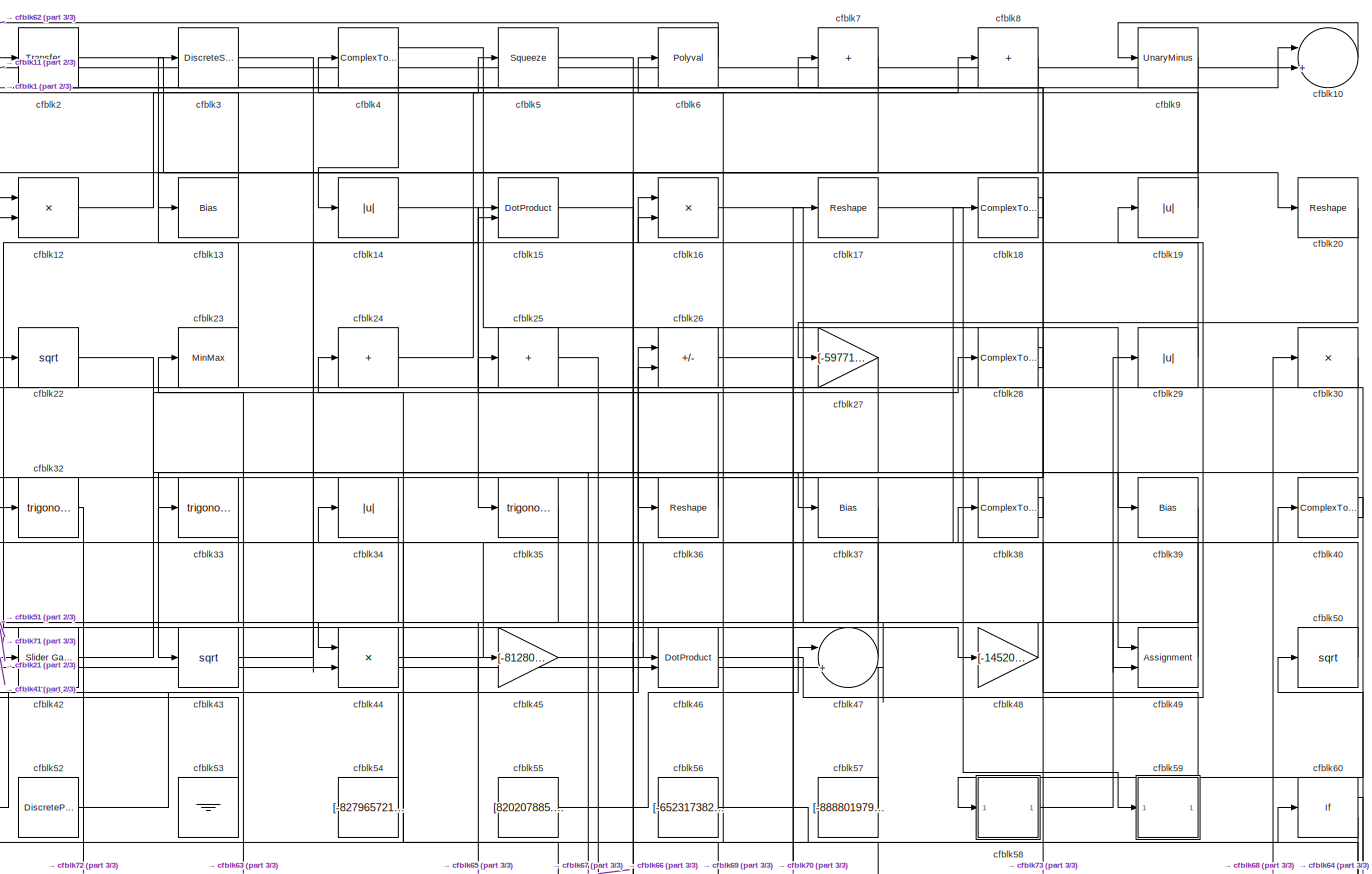
[diagram: root canvas - part 1/3, most of the canvas]
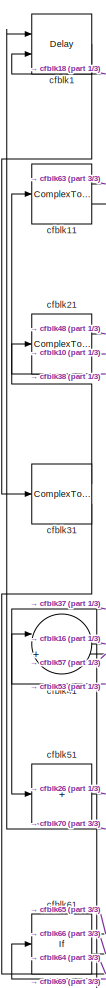
[diagram: root canvas - part 2/3, left side, full height]
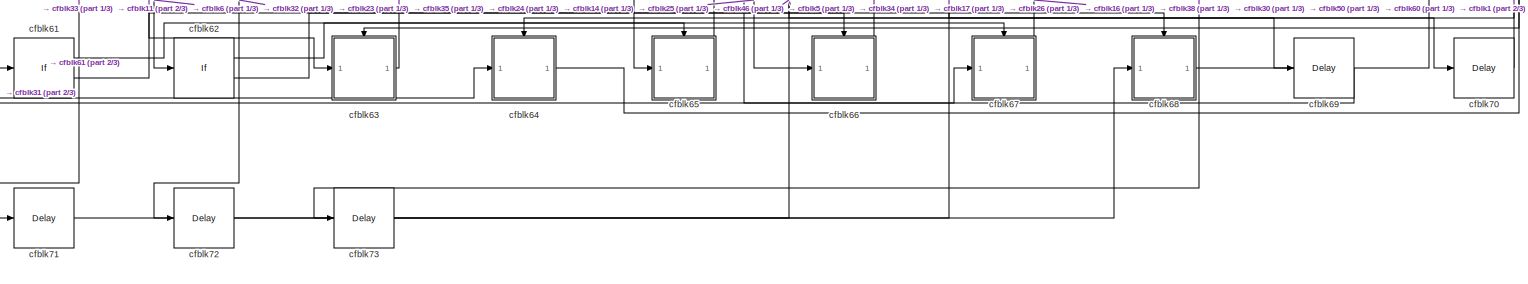
[diagram: root canvas - part 3/3, full width, bottom band]
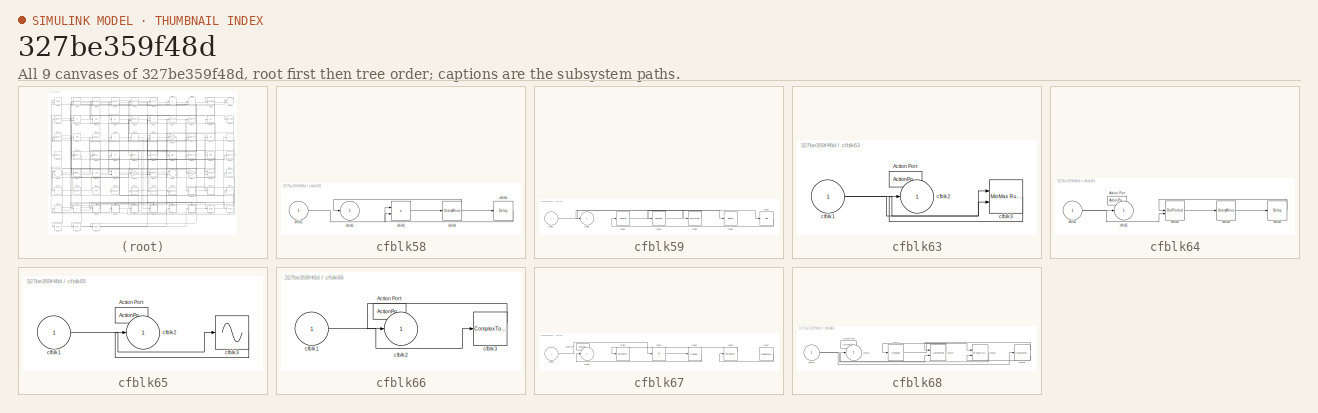
[diagram: thumbnail index - all 9 canvases of the model, root first then tree order]
MODEL slx_327be359f48d
KIND model
CONFIG AbsTol = auto
CONFIG EnableMultiTasking = off
CONFIG FixedStep = auto
CONFIG MaxStep = auto
CONFIG MinStep = auto
CONFIG RelTol = 1e-3
CONFIG SampleTimeConstraint = Unconstrained
CONFIG SolverName = VariableStepAuto
CONFIG StartTime = 0.0
CONFIG StopTime = 10.0
BLOCK [Delay] cfblk1
  DelayLengthSource = Input port
  InputPortMap = u0,p1
  Ports = [2, 1]
  SampleTime = 1
BLOCK [Sum] cfblk10
  Inputs = |++
  Ports = [2, 1]
BLOCK [ComplexToMagnitudeAngle] cfblk11
  Ports = [1, 2]
BLOCK [Product] cfblk12
  Inputs = **
  Ports = [2, 1]
BLOCK [Bias] cfblk13
  Bias = [-923462066.419543]
  SaturateOnIntegerOverflow = off
BLOCK [Abs] cfblk14
  SaturateOnIntegerOverflow = off
BLOCK [DotProduct] cfblk15
  OutDataTypeStr = Inherit: Inherit via internal rule
BLOCK [Product] cfblk16
  Inputs = **
  Ports = [2, 1]
BLOCK [Reshape] cfblk17
  Ports = [1, 1]
BLOCK [ComplexToMagnitudeAngle] cfblk18
  Ports = [1, 2]
BLOCK [Abs] cfblk19
  SaturateOnIntegerOverflow = off
BLOCK [Reference] cfblk2  REF=simulink/Discrete/Transfer Fcn
First Order
  Ports = [1, 1]
  SourceBlock = simulink/Discrete/Transfer Fcn\nFirst Order
  SourceProductBaseCode = SL
  SourceType = First Order Transfer Fcn
BLOCK [Reshape] cfblk20
  Ports = [1, 1]
BLOCK [ComplexToRealImag] cfblk21
  Ports = [1, 2]
BLOCK [Sqrt] cfblk22
BLOCK [MinMax] cfblk23
  Function = max
  Ports = [1, 1]
BLOCK [Sum] cfblk24
  IconShape = rectangular
  Inputs = +
  Ports = [1, 1]
BLOCK [Sum] cfblk25
  IconShape = rectangular
  Inputs = +
  Ports = [1, 1]
BLOCK [Sum] cfblk26
  IconShape = rectangular
  Inputs = +-
  Ports = [2, 1]
BLOCK [Gain] cfblk27
  Gain = [-597713606.381250]
BLOCK [ComplexToRealImag] cfblk28
  Ports = [1, 2]
BLOCK [Abs] cfblk29
  SaturateOnIntegerOverflow = off
BLOCK [DiscreteStateSpace] cfblk3
BLOCK [Product] cfblk30
  Inputs = *
  Ports = [1, 1]
BLOCK [ComplexToMagnitudeAngle] cfblk31
  Ports = [1, 2]
BLOCK [Trigonometry] cfblk32
  Ports = [1, 1]
BLOCK [Trigonometry] cfblk33
  Ports = [1, 1]
BLOCK [Abs] cfblk34
  SaturateOnIntegerOverflow = off
BLOCK [Trigonometry] cfblk35
  Ports = [1, 1]
BLOCK [Reshape] cfblk36
  Ports = [1, 1]
BLOCK [Bias] cfblk37
  Bias = [-637066120.639768]
  SaturateOnIntegerOverflow = off
BLOCK [ComplexToMagnitudeAngle] cfblk38
  Ports = [1, 2]
BLOCK [Bias] cfblk39
  Bias = [895369597.975036]
  SaturateOnIntegerOverflow = off
BLOCK [ComplexToMagnitudeAngle] cfblk4
  Ports = [1, 2]
BLOCK [ComplexToRealImag] cfblk40
  Ports = [1, 2]
BLOCK [Sum] cfblk41
  Inputs = |++
  Ports = [2, 1]
BLOCK [Reference] cfblk42  REF=simulink/Math
Operations/Slider
Gain
  Ports = [1, 1]
  SourceBlock = simulink/Math\nOperations/Slider\nGain
  SourceProductBaseCode = SL
  SourceType = Slider Gain
BLOCK [Sqrt] cfblk43
BLOCK [Product] cfblk44
  Inputs = **
  Ports = [2, 1]
BLOCK [Gain] cfblk45
  Gain = [-812802874.946073]
BLOCK [DotProduct] cfblk46
  OutDataTypeStr = Inherit: Inherit via internal rule
BLOCK [Sum] cfblk47
  Inputs = |++
  Ports = [2, 1]
BLOCK [Gain] cfblk48
  Gain = [-145205188.622426]
BLOCK [Assignment] cfblk49
  DiagnosticForDimensions = Warning
  IndexOptions = Index vector (dialog)
  Indices = 1
  OutputSizes = 1
  Ports = [2, 1]
BLOCK [Squeeze] cfblk5
BLOCK [Sqrt] cfblk50
BLOCK [Sum] cfblk51
  IconShape = rectangular
  Inputs = +
  Ports = [1, 1]
BLOCK [DiscretePulseGenerator] cfblk52
  Amplitude = [-578887056.439533]
  Period = [54917977.033567]
  PhaseDelay = [5.000000]
  Ports = [0, 1]
  PulseType = Time based
  PulseWidth = 5
BLOCK [Ground] cfblk53
BLOCK [Constant] cfblk54
  SampleTime = 1
  Value = [-827965721.110428]
BLOCK [Constant] cfblk55
  SampleTime = 1
  Value = [820207885.783036]
BLOCK [Constant] cfblk56
  SampleTime = 1
  Value = [-652317382.816959]
BLOCK [Constant] cfblk57
  SampleTime = 1
  Value = [-888801979.590904]
BLOCK [SubSystem] cfblk58
  Ports = [1, 1]
  RequestExecContextInheritance = off
BLOCK [Inport] cfblk58/cfblk1
BLOCK [Outport] cfblk58/cfblk2
BLOCK [Product] cfblk58/cfblk3
  Ports = [2, 1]
BLOCK [UnaryMinus] cfblk58/cfblk4
BLOCK [Delay] cfblk58/cfblk5
  InputPortMap = u0
  Ports = [1, 1]
  SampleTime = 1
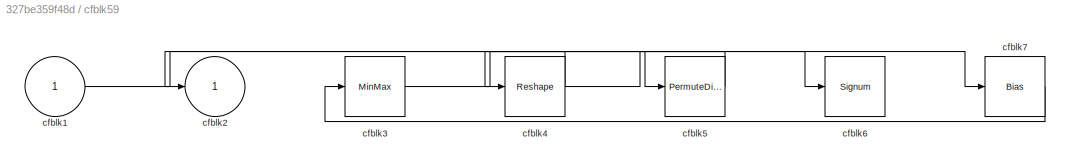
BLOCK [SubSystem] cfblk59
  Ports = [1, 1]
  RequestExecContextInheritance = off
BLOCK [Inport] cfblk59/cfblk1
BLOCK [Outport] cfblk59/cfblk2
BLOCK [MinMax] cfblk59/cfblk3
  Function = max
  Ports = [1, 1]
BLOCK [Reshape] cfblk59/cfblk4
  Ports = [1, 1]
BLOCK [PermuteDimensions] cfblk59/cfblk5
BLOCK [Signum] cfblk59/cfblk6
BLOCK [Bias] cfblk59/cfblk7
  Bias = [244778216.083397]
  SaturateOnIntegerOverflow = off
BLOCK [Polyval] cfblk6
  Coefs = [ +2.081618890e-019, -1.441693666e-014, +4.719686976e-010, -8.536869453e-006, +1.621573104e-001, -8.087801117e+001 ]
BLOCK [If] cfblk60
  IfExpression = u1 >= 0
  Ports = [1, 2]
  SampleTime = 1
BLOCK [If] cfblk61
  IfExpression = u1 >= 0
  Ports = [1, 2]
  SampleTime = 1
BLOCK [If] cfblk62
  IfExpression = u1 >= 0
  Ports = [1, 2]
  SampleTime = 1
BLOCK [SubSystem] cfblk63
  Ports = [1, 1, 0, 0, 0, 0, 0, 1]
  RequestExecContextInheritance = off
  TreatAsAtomicUnit = on
BLOCK [ActionPort] cfblk63/Action Port
  ActionPortLabel = if(u1 >= 0)
BLOCK [Inport] cfblk63/cfblk1
BLOCK [Outport] cfblk63/cfblk2
BLOCK [Reference] cfblk63/cfblk3  REF=simulink/Math
Operations/MinMax
Running
Resettable
  Ports = [2, 1]
  SourceBlock = simulink/Math\nOperations/MinMax\nRunning\nResettable
  SourceProductBaseCode = SL
  SourceType = MinMax Running Resettable
BLOCK [SubSystem] cfblk64
  Ports = [1, 1, 0, 0, 0, 0, 0, 1]
  RequestExecContextInheritance = off
  TreatAsAtomicUnit = on
BLOCK [ActionPort] cfblk64/Action Port
  ActionPortLabel = else
BLOCK [Inport] cfblk64/cfblk1
BLOCK [Outport] cfblk64/cfblk2
BLOCK [DotProduct] cfblk64/cfblk3
  OutDataTypeStr = Inherit: Inherit via internal rule
BLOCK [UnaryMinus] cfblk64/cfblk4
BLOCK [Delay] cfblk64/cfblk5
  InputPortMap = u0
  Ports = [1, 1]
BLOCK [SubSystem] cfblk65
  Ports = [1, 1, 0, 0, 0, 0, 0, 1]
  RequestExecContextInheritance = off
  TreatAsAtomicUnit = on
BLOCK [ActionPort] cfblk65/Action Port
  ActionPortLabel = if(u1 >= 0)
BLOCK [Inport] cfblk65/cfblk1
BLOCK [Outport] cfblk65/cfblk2
BLOCK [Sin] cfblk65/cfblk3
  Ports = [1, 1]
  SampleTime = 0
  TimeSource = Use external signal
BLOCK [SubSystem] cfblk66
  Ports = [1, 1, 0, 0, 0, 0, 0, 1]
  RequestExecContextInheritance = off
  TreatAsAtomicUnit = on
BLOCK [ActionPort] cfblk66/Action Port
  ActionPortLabel = else
BLOCK [Inport] cfblk66/cfblk1
BLOCK [Outport] cfblk66/cfblk2
BLOCK [ComplexToRealImag] cfblk66/cfblk3
  Ports = [1, 2]
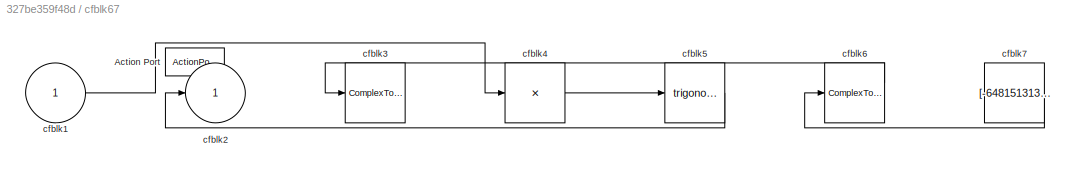
BLOCK [SubSystem] cfblk67
  Ports = [1, 1, 0, 0, 0, 0, 0, 1]
  RequestExecContextInheritance = off
  TreatAsAtomicUnit = on
BLOCK [ActionPort] cfblk67/Action Port
  ActionPortLabel = if(u1 >= 0)
BLOCK [Inport] cfblk67/cfblk1
BLOCK [Outport] cfblk67/cfblk2
BLOCK [ComplexToMagnitudeAngle] cfblk67/cfblk3
  Ports = [1, 2]
BLOCK [Product] cfblk67/cfblk4
  Inputs = *
  Ports = [1, 1]
BLOCK [Trigonometry] cfblk67/cfblk5
  Ports = [1, 1]
BLOCK [ComplexToMagnitudeAngle] cfblk67/cfblk6
  Ports = [1, 2]
BLOCK [Constant] cfblk67/cfblk7
  SampleTime = 1
  Value = [-648151313.234611]
BLOCK [SubSystem] cfblk68
  Ports = [1, 1, 0, 0, 0, 0, 0, 1]
  RequestExecContextInheritance = off
  TreatAsAtomicUnit = on
BLOCK [ActionPort] cfblk68/Action Port
  ActionPortLabel = else
BLOCK [Inport] cfblk68/cfblk1
BLOCK [Outport] cfblk68/cfblk2
BLOCK [Reshape] cfblk68/cfblk3
  Ports = [1, 1]
BLOCK [Assignment] cfblk68/cfblk4
  DiagnosticForDimensions = Warning
  IndexOptions = Index vector (dialog)
  Indices = 1
  OutputSizes = 1
  Ports = [2, 1]
BLOCK [Reference] cfblk68/cfblk5  REF=simulink/Math
Operations/MinMax
Running
Resettable
  Ports = [2, 1]
  SourceBlock = simulink/Math\nOperations/MinMax\nRunning\nResettable
  SourceProductBaseCode = SL
  SourceType = MinMax Running Resettable
BLOCK [ComplexToRealImag] cfblk68/cfblk6
  Ports = [1, 2]
BLOCK [Delay] cfblk69
  InputPortMap = u0
  Ports = [1, 1]
  SampleTime = 1
BLOCK [Sum] cfblk7
  IconShape = rectangular
  Inputs = +
  Ports = [1, 1]
BLOCK [Delay] cfblk70
  InputPortMap = u0
  Ports = [1, 1]
  SampleTime = 1
BLOCK [Delay] cfblk71
  InputPortMap = u0
  Ports = [1, 1]
  SampleTime = 1
BLOCK [Delay] cfblk72
  InputPortMap = u0
  Ports = [1, 1]
  SampleTime = 1
BLOCK [Delay] cfblk73
  InputPortMap = u0
  Ports = [1, 1]
  SampleTime = 1
BLOCK [Sum] cfblk8
  IconShape = rectangular
  Inputs = +
  Ports = [1, 1]
BLOCK [UnaryMinus] cfblk9
LINE cfblk10:1 -> cfblk9:1
LINE cfblk11:1 -> cfblk63:1
LINE cfblk11:2 -> cfblk10:2
LINE cfblk12:1 -> cfblk5:1
LINE cfblk13:1 -> cfblk2:1
LINE cfblk14:1 -> cfblk67:1
LINE cfblk15:1 -> cfblk37:1
LINE cfblk16:1 -> cfblk49:2
LINE cfblk17:1 -> cfblk59:1
LINE cfblk18:1 -> cfblk32:1
LINE cfblk18:2 -> cfblk1:2
LINE cfblk19:1 -> cfblk4:1
LINE cfblk1:1 -> cfblk31:1
LINE cfblk20:1 -> cfblk27:1
LINE cfblk21:1 -> cfblk48:1
LINE cfblk21:2 -> cfblk10:1
LINE cfblk22:1 -> cfblk39:1
LINE cfblk23:1 -> cfblk3:1
LINE cfblk24:1 -> cfblk8:1
LINE cfblk25:1 -> cfblk66:1
LINE cfblk26:1 -> cfblk70:1
LINE cfblk27:1 -> cfblk43:1
LINE cfblk28:1 -> cfblk36:1
LINE cfblk28:2 -> cfblk7:1
LINE cfblk29:1 -> cfblk6:1
LINE cfblk2:1 -> cfblk20:1
LINE cfblk30:1 -> cfblk44:2
LINE cfblk31:1 -> cfblk11:1
LINE cfblk31:2 -> cfblk64:1
LINE cfblk32:1 -> cfblk72:1
LINE cfblk33:1 -> cfblk71:1
LINE cfblk34:1 -> cfblk42:1
LINE cfblk35:1 -> cfblk65:1
LINE cfblk36:1 -> cfblk15:1
LINE cfblk37:1 -> cfblk51:1
LINE cfblk38:1 -> cfblk73:1
LINE cfblk38:2 -> cfblk21:1
LINE cfblk39:1 -> cfblk47:2
LINE cfblk3:1 -> cfblk35:1
LINE cfblk40:1 -> cfblk58:1
LINE cfblk40:2 -> cfblk25:1
LINE cfblk41:1 -> cfblk16:2
LINE cfblk42:1 -> cfblk28:1
LINE cfblk43:1 -> cfblk15:2
LINE cfblk44:1 -> cfblk18:1
LINE cfblk45:1 -> cfblk40:1
LINE cfblk46:1 -> cfblk19:1
LINE cfblk47:1 -> cfblk33:1
LINE cfblk48:1 -> cfblk44:1
LINE cfblk49:1 -> cfblk22:1
LINE cfblk4:1 -> cfblk49:1
LINE cfblk4:2 -> cfblk14:1
LINE cfblk50:1 -> cfblk26:1
LINE cfblk51:1 -> cfblk26:2
LINE cfblk52:1 -> cfblk45:1
LINE cfblk53:1 -> cfblk41:1
LINE cfblk54:1 -> cfblk12:1
LINE cfblk55:1 -> cfblk47:1
LINE cfblk56:1 -> cfblk60:1
LINE cfblk57:1 -> cfblk41:2
LINE cfblk58/cfblk1:1 -> cfblk58/cfblk3:1
LINE cfblk58/cfblk3:1 -> cfblk58/cfblk4:1
NET cfblk58/cfblk4:1 -> cfblk58/cfblk2:1, cfblk58/cfblk5:1
LINE cfblk58/cfblk5:1 -> cfblk58/cfblk3:2
LINE cfblk58:1 -> cfblk29:1
LINE cfblk59/cfblk1:1 -> cfblk59/cfblk7:1
LINE cfblk59/cfblk3:1 -> cfblk59/cfblk5:1
NET cfblk59/cfblk4:1 -> cfblk59/cfblk2:1, cfblk59/cfblk6:1
LINE cfblk59/cfblk5:1 -> cfblk59/cfblk4:1
LINE cfblk59/cfblk7:1 -> cfblk59/cfblk3:1
LINE cfblk59:1 -> cfblk38:1
LINE cfblk5:1 -> cfblk69:1
LINE cfblk60:1 -> cfblk63:ifaction
LINE cfblk60:2 -> cfblk64:ifaction
LINE cfblk61:1 -> cfblk65:ifaction
LINE cfblk61:2 -> cfblk66:ifaction
LINE cfblk62:1 -> cfblk67:ifaction
LINE cfblk62:2 -> cfblk68:ifaction
NET cfblk63/cfblk1:1 -> cfblk63/cfblk3:1, cfblk63/cfblk3:2
LINE cfblk63/cfblk3:1 -> cfblk63/cfblk2:1
LINE cfblk63:1 -> cfblk23:1
NET cfblk64/cfblk1:1 -> cfblk64/cfblk2:1, cfblk64/cfblk3:2
LINE cfblk64/cfblk3:1 -> cfblk64/cfblk4:1
LINE cfblk64/cfblk4:1 -> cfblk64/cfblk5:1
LINE cfblk64/cfblk5:1 -> cfblk64/cfblk3:1
LINE cfblk64:1 -> cfblk50:1
LINE cfblk65/cfblk1:1 -> cfblk65/cfblk3:1
LINE cfblk65/cfblk3:1 -> cfblk65/cfblk2:1
LINE cfblk65:1 -> cfblk24:1
LINE cfblk66/cfblk1:1 -> cfblk66/cfblk3:1
LINE cfblk66/cfblk3:1 -> cfblk66/cfblk2:1
LINE cfblk66:1 -> cfblk34:1
LINE cfblk67/cfblk1:1 -> cfblk67/cfblk4:1
LINE cfblk67/cfblk4:1 -> cfblk67/cfblk5:1
LINE cfblk67/cfblk5:1 -> cfblk67/cfblk2:1
LINE cfblk67/cfblk6:1 -> cfblk67/cfblk3:1
LINE cfblk67/cfblk7:1 -> cfblk67/cfblk6:1
LINE cfblk67:1 -> cfblk16:1
NET cfblk68/cfblk1:1 -> cfblk68/cfblk4:2, cfblk68/cfblk6:1
LINE cfblk68/cfblk3:1 -> cfblk68/cfblk5:1
LINE cfblk68/cfblk4:1 -> cfblk68/cfblk3:1
LINE cfblk68/cfblk5:1 -> cfblk68/cfblk2:1
LINE cfblk68/cfblk6:1 -> cfblk68/cfblk4:1
LINE cfblk68/cfblk6:2 -> cfblk68/cfblk5:2
LINE cfblk68:1 -> cfblk30:1
LINE cfblk69:1 -> cfblk61:1
LINE cfblk6:1 -> cfblk62:1
LINE cfblk70:1 -> cfblk1:1
LINE cfblk71:1 -> cfblk46:1
LINE cfblk72:1 -> cfblk68:1
LINE cfblk73:1 -> cfblk17:1
LINE cfblk7:1 -> cfblk46:2
LINE cfblk8:1 -> cfblk12:2
LINE cfblk9:1 -> cfblk13:1
note: NET lines group one-source signal fan-out (src -> all destinations, sorted); 1:1 wires keep LINE
